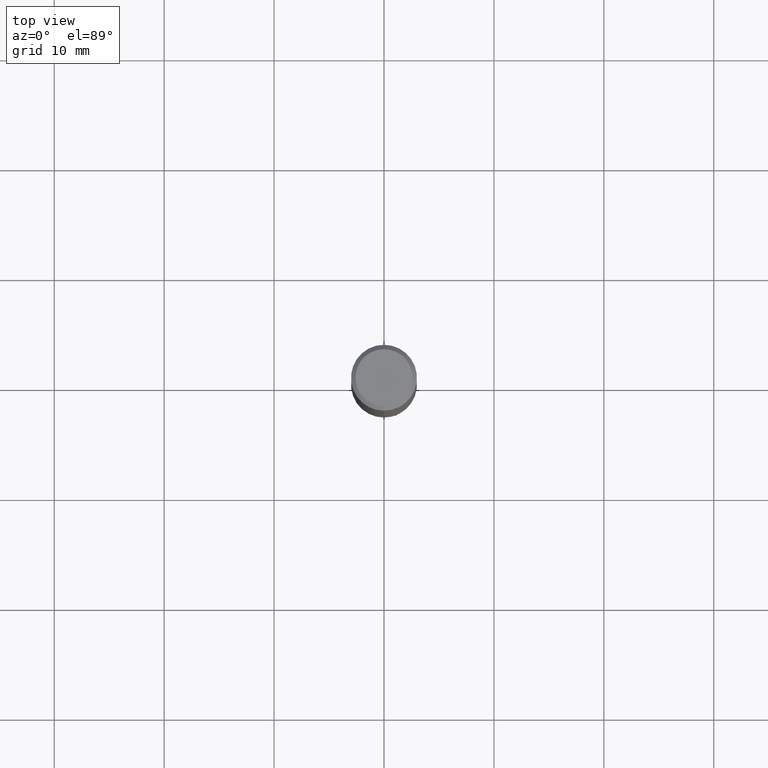
[diagram: clean part render]
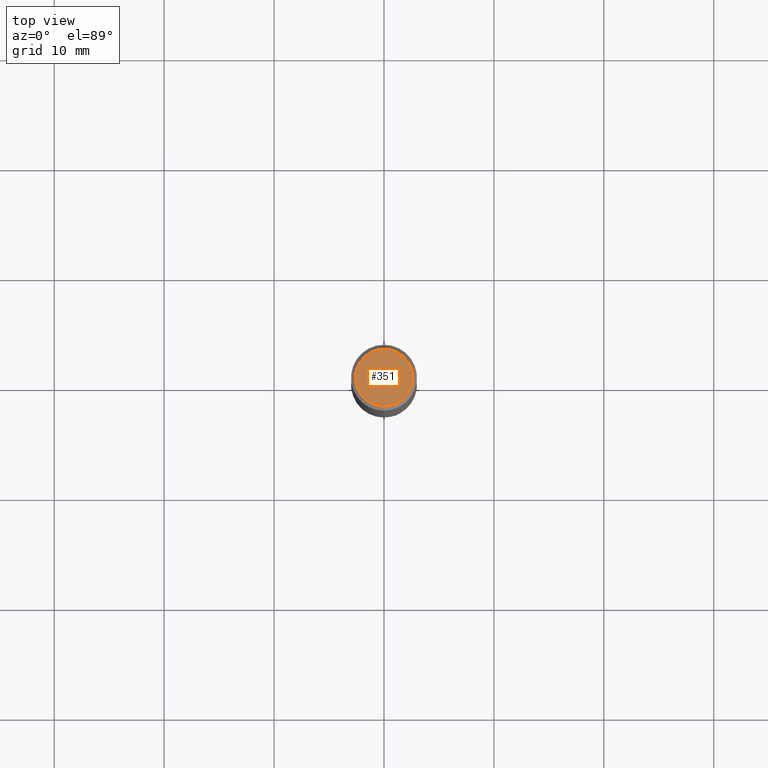
[diagram: same view with one face highlighted and labeled with its STEP entity id]
A machine part, top view. The second image highlights one B-rep face of the part: STEP entity #351.
In plain terms, the highlighted planar face has unit normal (-0, 0, 1).
Its self-contained STEP definition (entity closure, byte-faithful):
#319=EDGE_CURVE('',#637,#463,#815,.T.);
#351=ADVANCED_FACE('',(#849),#850,.T.);
#463=VERTEX_POINT('',#973);
#551=EDGE_CURVE('',#463,#637,#1067,.T.);
#637=VERTEX_POINT('',#1161);
#815=CIRCLE('',#2403,2.6);
#849=FACE_OUTER_BOUND('',#2587,.T.);
#850=PLANE('',#2588);
#973=CARTESIAN_POINT('',(3.18397651993818E-016,-2.6,0.0));
#1067=CIRCLE('',#4344,2.6);
#1161=CARTESIAN_POINT('',(0.0,2.6,0.0));
#2403=AXIS2_PLACEMENT_3D('',#5271,#5272,#5273);
#2587=EDGE_LOOP('',(#5305,#5306));
#2588=AXIS2_PLACEMENT_3D('',#5307,#5308,#5309);
#4344=AXIS2_PLACEMENT_3D('',#5529,#5530,#5531);
#5271=CARTESIAN_POINT('',(0.0,0.0,0.0));
#5272=DIRECTION('',(0.0,0.0,-1.0));
#5273=DIRECTION('',(0.0,1.0,0.0));
#5305=ORIENTED_EDGE('',*,*,#319,.F.);
#5306=ORIENTED_EDGE('',*,*,#551,.F.);
#5307=CARTESIAN_POINT('',(0.0,1.3,0.0));
#5308=DIRECTION('',(-0.0,0.0,1.0));
#5309=DIRECTION('',(0.0,-1.0,0.0));
#5529=CARTESIAN_POINT('',(0.0,0.0,0.0));
#5530=DIRECTION('',(0.0,0.0,-1.0));
#5531=DIRECTION('',(0.0,1.0,0.0));